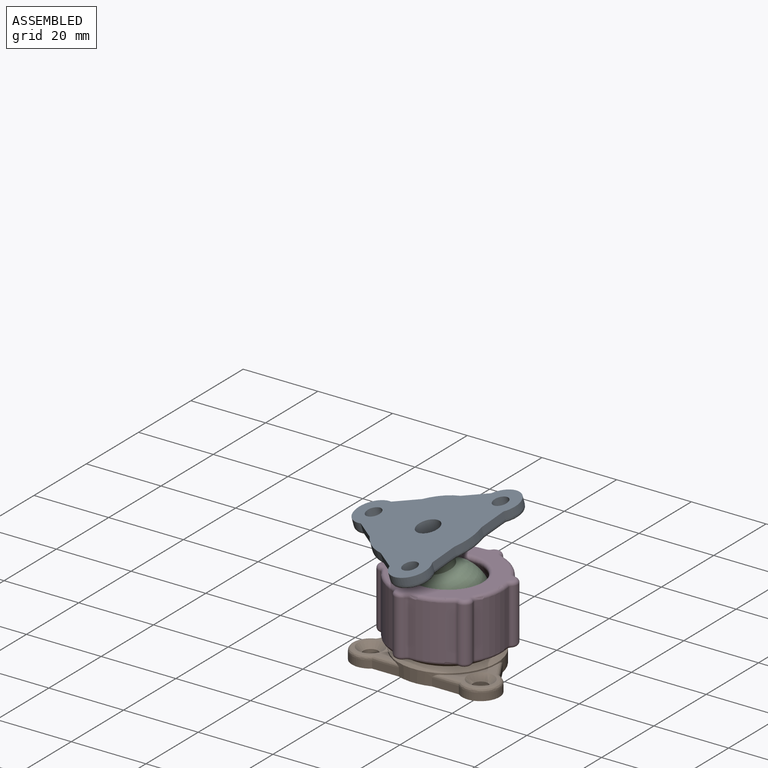
[diagram: assembled view]
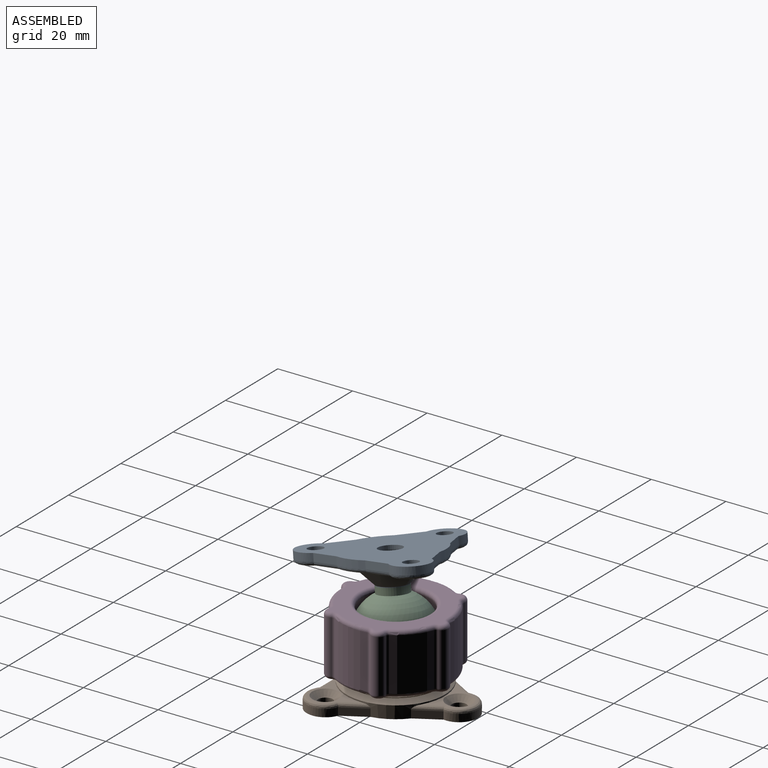
[diagram: assembled view, second angle]
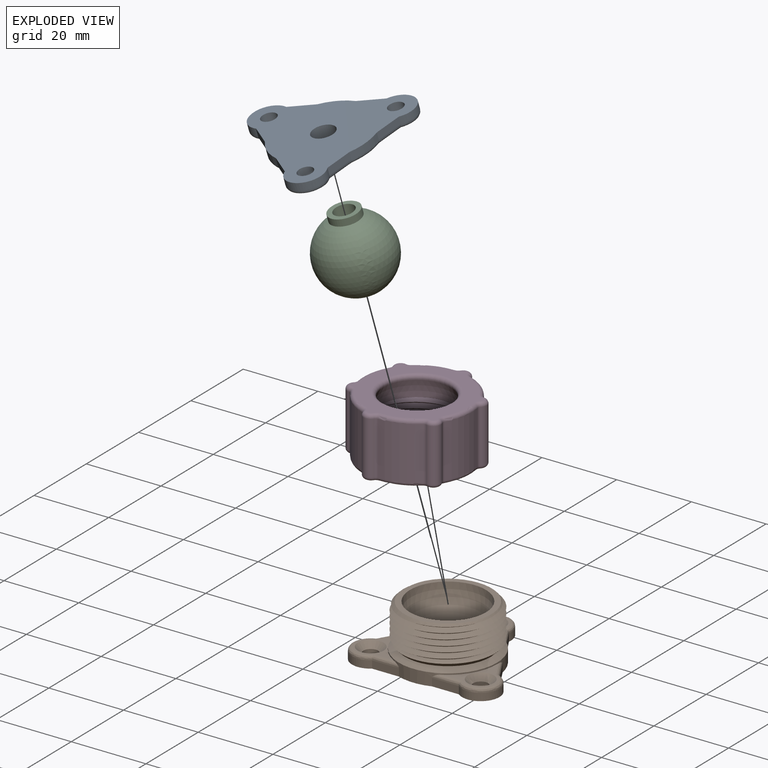
[diagram: exploded view]
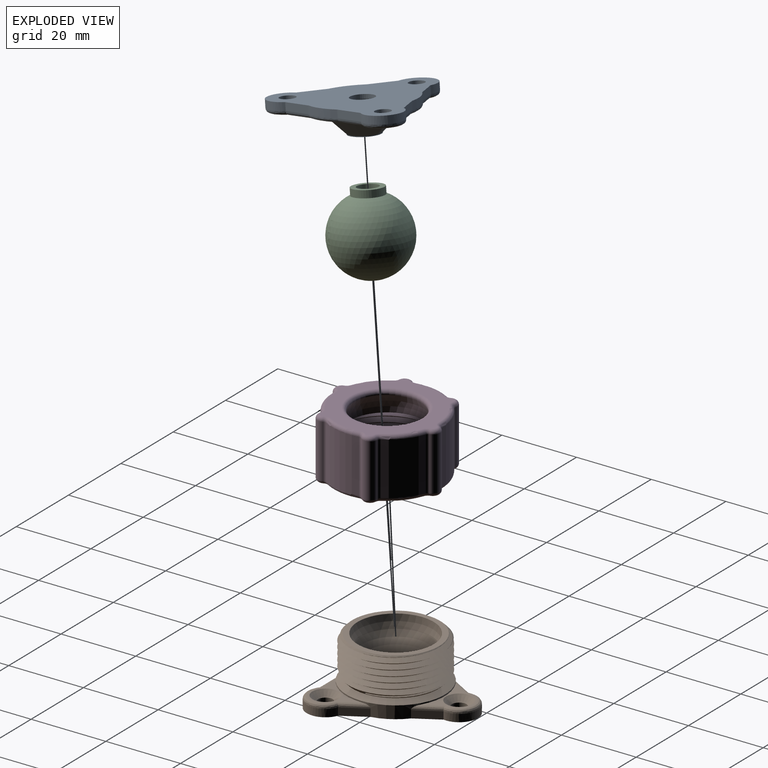
[diagram: exploded view, second angle]
ASSEMBLY  parts=4 mates=3
PART A: 38 faces, bbox 39.9x35.9x8.2 mm
  f0: plane 39.45x35.5mm, normal (0,0,1), area 761.5mm2, adj f4,f5,f6,f7,f8,f9,f10,f11
  f1: plane 37.53x33.55mm, normal (0,0,-1), area 395.3mm2, adj f3,f19,f20,f21,f22,f23,f24,f25
  f2: cylinder r=4mm len=8mm, axis (0,0,1), area 4.2mm2, adj f3,f31
  f3: cone r=9mm half-angle=45deg, axis (0,0,1), area 288.8mm2, adj f1,f2
  f4: cylinder r=2mm len=4mm, axis (0,0,-1), area 31.4mm2, adj f0,f35
  f5: cylinder r=2mm len=4mm, axis (0,0,-1), area 31.4mm2, adj f0,f37
  f6: cylinder r=2mm len=4mm, axis (0,0,-1), area 31.4mm2, adj f0,f36
  f7: plane 6.21x3.58mm, normal (0.87,0.5,0), area 14.3mm2, adj f0,f8,f11,f24
  f8: cylinder r=13.19mm len=7.7mm, axis (0,0,-1), area 18.1mm2, adj f0,f7,f9,f22
  f9: plane 6.21x3.58mm, normal (0.87,0.5,0), area 14.3mm2, adj f0,f8,f10,f20
  f10: cylinder r=5mm len=9.65mm, axis (0,0,-1), area 34.4mm2, adj f0,f9,f18,f19
  f11: cylinder r=5mm len=10mm, axis (0,0,-1), area 34.4mm2, adj f0,f7,f13,f26
  f12: cylinder r=13.19mm len=7.7mm, axis (0,0,-1), area 18.1mm2, adj f0,f13,f15,f30
  f13: plane 6.21x3.58mm, normal (-0.87,0.5,0), area 14.3mm2, adj f0,f11,f12,f28
  f14: cylinder r=5mm len=9.65mm, axis (0,0,-1), area 34.4mm2, adj f0,f15,f17,f27
  f15: plane 6.21x3.58mm, normal (-0.87,0.5,0), area 14.3mm2, adj f0,f12,f14,f29
  f16: cylinder r=13.19mm len=8.89mm, axis (0,0,-1), area 18.1mm2, adj f0,f17,f18,f23
  f17: plane 7.17x2mm, normal (0,-1,0), area 14.3mm2, adj f0,f14,f16,f25
  f18: plane 7.17x2mm, normal (0,-1,0), area 14.3mm2, adj f0,f10,f16,f21
  f19: bspline ~10.18x9.14mm, area 26.6mm2, adj f1,f10,f20,f21
  f20: bspline ~7.7x5.02mm, area 12.1mm2, adj f1,f9,f19,f22
  f21: bspline ~8.31x1mm, area 12.1mm2, adj f1,f18,f19,f23
  f22: bspline ~8.73x5.58mm, area 14.7mm2, adj f1,f8,f20,f24
  f23: bspline ~9.92x1.93mm, area 14.7mm2, adj f1,f16,f21,f25
  f24: bspline ~7.7x5.02mm, area 12.1mm2, adj f1,f7,f22,f26
  f25: bspline ~8.31x1mm, area 12.1mm2, adj f1,f17,f23,f27
  f26: bspline ~10.23x6.98mm, area 26.6mm2, adj f1,f11,f24,f28
  f27: bspline ~10.18x9.14mm, area 26.6mm2, adj f1,f14,f25,f29
  f28: bspline ~7.7x5.02mm, area 12.1mm2, adj f1,f13,f26,f30
  f29: bspline ~7.7x5.02mm, area 12.1mm2, adj f1,f15,f27,f30
  f30: bspline ~8.73x5.58mm, area 14.7mm2, adj f1,f12,f28,f29
  f31: plane 8x8mm, normal (0,0,-1), area 43.2mm2, adj f2,f34
  f32: cylinder r=3mm len=6mm, axis (0,0,1), area 84.8mm2, adj f0,f33
  f33: plane 6x6mm, normal (0,0,1), area 21.2mm2, adj f32,f34
  f34: cylinder r=1.5mm len=3.67mm, axis (0,0,1), area 34.5mm2, adj f31,f33
  f35: cone r=2.5mm half-angle=45deg, axis (0,0,-1), area 10mm2, adj f1,f4
  f36: cone r=2.5mm half-angle=45deg, axis (0,0,-1), area 10mm2, adj f1,f6
  f37: cone r=2.5mm half-angle=45deg, axis (0,0,-1), area 10mm2, adj f1,f5
PART B: 41 faces, bbox 40x37.1x15.6 mm
  f0: plane 12.54x12.16mm, normal (0,0,1), area 27mm2, adj f12,f29,f32,f33,f34
  f1: plane 39.45x35.5mm, normal (0,0,-1), area 635.8mm2, adj f12,f15,f16,f17,f18,f19,f20,f21
  f2: plane 12.54x12.16mm, normal (0,0,1), area 27.1mm2, adj f12,f30,f35,f36,f37
  f3: plane 13.18x9.58mm, normal (0,0,1), area 27mm2, adj f12,f31,f38,f39,f40
  f4: sphere r=10.2mm, area 478.3mm2, adj f5,f14
  f5: plane 23.51x23.35mm, normal (0,0,1), area 102mm2, adj f4,f6,f8,f9
  f6: cone r=11.69mm half-angle=45deg, axis (0,0,-1), area 52.1mm2, adj f5,f8,f9
  f7: plane 0.8x0.59mm, normal (0,1,0), area 0.1mm2, adj f8,f9,f10
  f8: bspline ~29.63x25.66mm, area 706.5mm2, adj f5,f6,f7,f9,f10,f11
  f9: bspline ~29.63x25.66mm, area 696.6mm2, adj f5,f6,f7,f8,f11
  f10: cone r=13.19mm half-angle=45deg, axis (0,0,1), area 73mm2, adj f7,f8,f11,f28
  f11: cone r=13.19mm half-angle=45deg, axis (0,0,1), area 3.3mm2, adj f8,f9,f10
  f12: cylinder r=13.19mm len=26.38mm, axis (0,0,1), area 112.9mm2, adj f0,f1,f2,f3,f17,f18,f21,f23
  f13: cylinder r=6mm len=12mm, axis (0,0,1), area 205.7mm2, adj f14,f15
  f14: torus R=7mm, axis (0,0,1), area 34.5mm2, adj f4,f13
  f15: torus R=7mm, axis (0,0,-1), area 62.8mm2, adj f1,f13
  f16: cylinder r=2mm len=4mm, axis (0,0,1), area 18.8mm2, adj f1,f31
  f17: plane 6.21x3.58mm, normal (0.87,0.5,0), area 14.3mm2, adj f1,f12,f20,f38
  f18: plane 6.21x3.58mm, normal (0.87,0.5,0), area 14.3mm2, adj f1,f12,f19,f34
  f19: cylinder r=5mm len=9.65mm, axis (0,0,1), area 34.4mm2, adj f1,f18,f25,f33
  f20: cylinder r=5mm len=10mm, axis (0,0,1), area 34.4mm2, adj f1,f17,f21,f39
  f21: plane 6.21x3.58mm, normal (-0.87,0.5,0), area 14.3mm2, adj f1,f12,f20,f40
  f22: cylinder r=5mm len=9.65mm, axis (0,0,1), area 34.4mm2, adj f1,f23,f24,f36
  f23: plane 6.21x3.58mm, normal (-0.87,0.5,0), area 14.3mm2, adj f1,f12,f22,f35
  f24: plane 7.17x2mm, normal (0,-1,0), area 14.3mm2, adj f1,f12,f22,f37
  f25: plane 7.17x2mm, normal (0,-1,0), area 14.3mm2, adj f1,f12,f19,f32
  f26: cylinder r=2mm len=4mm, axis (0,0,1), area 18.8mm2, adj f1,f30
  f27: cylinder r=2mm len=4mm, axis (0,0,1), area 18.8mm2, adj f1,f29
  f28: cone r=11.19mm half-angle=60deg, axis (0,0,-1), area 150.8mm2, adj f10,f12
  f29: cone r=2mm half-angle=45deg, axis (0,0,1), area 36.7mm2, adj f0,f27
  f30: cone r=2mm half-angle=45deg, axis (0,0,1), area 36.7mm2, adj f2,f26
  f31: cone r=2mm half-angle=45deg, axis (0,0,1), area 36.7mm2, adj f3,f16
  f32: bspline ~8.21x1mm, area 10.2mm2, adj f0,f12,f25,f33
  f33: bspline ~10.18x9.14mm, area 26.6mm2, adj f0,f19,f32,f34
  f34: bspline ~7.61x4.97mm, area 10.6mm2, adj f0,f12,f18,f33
  f35: bspline ~7.61x4.97mm, area 10.2mm2, adj f2,f12,f23,f36
  f36: bspline ~10.18x9.14mm, area 26.6mm2, adj f2,f22,f35,f37
  f37: bspline ~8.21x1mm, area 10.2mm2, adj f2,f12,f24,f36
  f38: bspline ~7.61x4.97mm, area 10.2mm2, adj f3,f12,f17,f39
  f39: bspline ~10.23x6.98mm, area 26.6mm2, adj f3,f20,f38,f40
  f40: bspline ~7.61x4.97mm, area 10.2mm2, adj f3,f12,f21,f39
PART C: 5 faces, bbox 20x20x21 mm
  f0: plane 8x8mm, normal (0,0,1), area 28.2mm2, adj f2,f3
  f1: sphere r=10mm, area 1204.2mm2, adj f2
  f2: cylinder r=4mm len=8mm, axis (0,0,1), area 46.1mm2, adj f0,f1
  f3: cylinder r=2.65mm len=6mm, axis (0,0,1), area 99.9mm2, adj f0,f4
  f4: plane 5.3x5.3mm, normal (0,0,1), area 22.1mm2, adj f3
PART D: 82 faces, bbox 32.8x33.7x18 mm
  f0: plane 31.35x28.35mm, normal (0,0,-1), area 105.1mm2, adj f9,f12,f13,f14,f22,f23,f24,f25
  f1: plane 30.38x27.38mm, normal (0,0,1), area 292.4mm2, adj f15,f27,f31,f32,f36,f37,f41,f42
  f2: cylinder r=14.69mm len=14.2mm, axis (0,0,1), area 145.7mm2, adj f70,f75,f78,f81
  f3: cylinder r=14.69mm len=14.2mm, axis (0,0,1), area 145.7mm2, adj f58,f59,f67,f68
  f4: cylinder r=14.69mm len=14.2mm, axis (0,0,1), area 145.7mm2, adj f38,f39,f47,f48
  f5: cylinder r=14.69mm len=14.2mm, axis (0,0,1), area 145.7mm2, adj f22,f26,f27,f28
  f6: cylinder r=14.69mm len=14.2mm, axis (0,0,1), area 145.7mm2, adj f34,f35,f45,f46
  f7: cylinder r=14.69mm len=14.2mm, axis (0,0,1), area 145.7mm2, adj f54,f55,f65,f66
  f8: plane 26.77x26.32mm, normal (0,0,-1), area 212.7mm2, adj f9,f10,f11,f12
  f9: cylinder r=13.19mm len=26.38mm, axis (0,0,1), area 31.7mm2, adj f0,f8,f11,f12,f13,f14
  f10: sphere r=10.2mm, area 291.8mm2, adj f8,f15
  f11: plane 1.14x1.11mm, normal (0.49,-0.87,0), area 0.8mm2, adj f8,f9,f12,f14
  f12: bspline ~30.46x26.38mm, area 761.1mm2, adj f0,f8,f9,f11,f13,f14
  f13: plane 0.67x0.39mm, normal (0,-1,0), area 0.1mm2, adj f0,f9,f12
  f14: bspline ~30.46x26.38mm, area 723.3mm2, adj f0,f9,f11,f12
  f15: torus R=10.02mm, axis (0,0,-1), area 119mm2, adj f1,f10
  f16: cylinder r=2mm len=14.2mm, axis (0,0,1), area 64.6mm2, adj f44,f45,f55,f56
  f17: cylinder r=2mm len=14.2mm, axis (0,0,1), area 64.6mm2, adj f25,f26,f35,f36
  f18: cylinder r=2mm len=14.2mm, axis (0,0,1), area 64.6mm2, adj f28,f29,f37,f38
  f19: cylinder r=2mm len=14.2mm, axis (0,0,1), area 64.6mm2, adj f48,f49,f57,f58
  f20: cylinder r=2mm len=14.2mm, axis (0,0,1), area 64.6mm2, adj f68,f69,f77,f78
  f21: cylinder r=2mm len=14.2mm, axis (0,0,1), area 64.6mm2, adj f64,f65,f75,f76
  f22: torus R=13.69mm, axis (0,0,1), area 15.7mm2, adj f0,f5,f23,f24
  f23: torus R=2mm, axis (0,0,1), area 2.1mm2, adj f0,f22,f25,f26
  f24: torus R=2mm, axis (0,0,1), area 2.1mm2, adj f0,f22,f28,f29
  f25: torus R=1mm, axis (0,0,1), area 5.8mm2, adj f0,f17,f23,f30
  f26: cylinder r=1mm len=14.2mm, axis (0,0,-1), area 13.7mm2, adj f5,f17,f23,f31
  f27: torus R=13.69mm, axis (0,0,-1), area 15.7mm2, adj f1,f5,f31,f32
  f28: cylinder r=1mm len=14.2mm, axis (0,0,-1), area 13.7mm2, adj f5,f18,f24,f32
  f29: torus R=1mm, axis (0,0,1), area 5.8mm2, adj f0,f18,f24,f33
  f30: torus R=2mm, axis (0,0,1), area 2.1mm2, adj f0,f25,f34,f35
  f31: torus R=2mm, axis (0,0,-1), area 2.1mm2, adj f1,f26,f27,f36
  f32: torus R=2mm, axis (0,0,-1), area 2.1mm2, adj f1,f27,f28,f37
  f33: torus R=2mm, axis (0,0,1), area 2.1mm2, adj f0,f29,f38,f39
  f34: torus R=13.69mm, axis (0,0,1), area 15.7mm2, adj f0,f6,f30,f40
  f35: cylinder r=1mm len=14.2mm, axis (0,0,-1), area 13.7mm2, adj f6,f17,f30,f41
  f36: torus R=1mm, axis (0,0,-1), area 5.8mm2, adj f1,f17,f31,f41
  f37: torus R=1mm, axis (0,0,-1), area 5.8mm2, adj f1,f18,f32,f42
  f38: cylinder r=1mm len=14.2mm, axis (0,0,-1), area 13.7mm2, adj f4,f18,f33,f42
  f39: torus R=13.69mm, axis (0,0,1), area 15.7mm2, adj f0,f4,f33,f43
  f40: torus R=2mm, axis (0,0,1), area 2.1mm2, adj f0,f34,f44,f45
  f41: torus R=2mm, axis (0,0,-1), area 2.1mm2, adj f1,f35,f36,f46
  f42: torus R=2mm, axis (0,0,-1), area 2.1mm2, adj f1,f37,f38,f47
  f43: torus R=2mm, axis (0,0,1), area 2.1mm2, adj f0,f39,f48,f49
  f44: torus R=1mm, axis (0,0,1), area 5.8mm2, adj f0,f16,f40,f50
  f45: cylinder r=1mm len=14.2mm, axis (0,0,-1), area 13.7mm2, adj f6,f16,f40,f51
  f46: torus R=13.69mm, axis (0,0,-1), area 15.7mm2, adj f1,f6,f41,f51
  f47: torus R=13.69mm, axis (0,0,-1), area 15.7mm2, adj f1,f4,f42,f52
  f48: cylinder r=1mm len=14.2mm, axis (0,0,-1), area 13.7mm2, adj f4,f19,f43,f52
  f49: torus R=1mm, axis (0,0,1), area 5.8mm2, adj f0,f19,f43,f53
  f50: torus R=2mm, axis (0,0,1), area 2.1mm2, adj f0,f44,f54,f55
  f51: torus R=2mm, axis (0,0,-1), area 2.1mm2, adj f1,f45,f46,f56
  f52: torus R=2mm, axis (0,0,-1), area 2.1mm2, adj f1,f47,f48,f57
  f53: torus R=2mm, axis (0,0,1), area 2.1mm2, adj f0,f49,f58,f59
  f54: torus R=13.69mm, axis (0,0,1), area 15.7mm2, adj f0,f7,f50,f60
  f55: cylinder r=1mm len=14.2mm, axis (0,0,-1), area 13.7mm2, adj f7,f16,f50,f61
  f56: torus R=1mm, axis (0,0,-1), area 5.8mm2, adj f1,f16,f51,f61
  f57: torus R=1mm, axis (0,0,-1), area 5.8mm2, adj f1,f19,f52,f62
  f58: cylinder r=1mm len=14.2mm, axis (0,0,-1), area 13.7mm2, adj f3,f19,f53,f62
  f59: torus R=13.69mm, axis (0,0,1), area 15.7mm2, adj f0,f3,f53,f63
  f60: torus R=2mm, axis (0,0,1), area 2.1mm2, adj f0,f54,f64,f65
  f61: torus R=2mm, axis (0,0,-1), area 2.1mm2, adj f1,f55,f56,f66
  f62: torus R=2mm, axis (0,0,-1), area 2.1mm2, adj f1,f57,f58,f67
  f63: torus R=2mm, axis (0,0,1), area 2.1mm2, adj f0,f59,f68,f69
  f64: torus R=1mm, axis (0,0,1), area 5.8mm2, adj f0,f21,f60,f71
  f65: cylinder r=1mm len=14.2mm, axis (0,0,-1), area 13.7mm2, adj f7,f21,f60,f72
  f66: torus R=13.69mm, axis (0,0,-1), area 15.7mm2, adj f1,f7,f61,f72
  f67: torus R=13.69mm, axis (0,0,-1), area 15.7mm2, adj f1,f3,f62,f73
  f68: cylinder r=1mm len=14.2mm, axis (0,0,-1), area 13.7mm2, adj f3,f20,f63,f73
  f69: torus R=1mm, axis (0,0,1), area 5.8mm2, adj f0,f20,f63,f74
  f70: torus R=13.69mm, axis (0,0,1), area 15.7mm2, adj f0,f2,f71,f74
  f71: torus R=2mm, axis (0,0,1), area 2.1mm2, adj f0,f64,f70,f75
  f72: torus R=2mm, axis (0,0,-1), area 2.1mm2, adj f1,f65,f66,f76
  f73: torus R=2mm, axis (0,0,-1), area 2.1mm2, adj f1,f67,f68,f77
  f74: torus R=2mm, axis (0,0,1), area 2.1mm2, adj f0,f69,f70,f78
  f75: cylinder r=1mm len=14.2mm, axis (0,0,-1), area 13.7mm2, adj f2,f21,f71,f79
  f76: torus R=1mm, axis (0,0,-1), area 5.8mm2, adj f1,f21,f72,f79
  f77: torus R=1mm, axis (0,0,-1), area 5.8mm2, adj f1,f20,f73,f80
  f78: cylinder r=1mm len=14.2mm, axis (0,0,-1), area 13.7mm2, adj f2,f20,f74,f80
  f79: torus R=2mm, axis (0,0,-1), area 2.1mm2, adj f1,f75,f76,f81
  f80: torus R=2mm, axis (0,0,-1), area 2.1mm2, adj f1,f77,f78,f81
  f81: torus R=13.69mm, axis (0,0,-1), area 15.7mm2, adj f1,f2,f79,f80
PLACE A rot(axis=(0.31,-0.12,-0.94),41.4deg) t=(5.31,-0.66,-0.5)mm
PLACE B t=(5.31,-0.66,0)mm fixed
PLACE C rot(axis=(0.31,-0.12,-0.94),41.4deg) t=(5.31,-0.66,-0.5)mm
PLACE D rot(axis=(0,0,-1),70.4deg) t=(5.31,-0.66,0.8)mm
MATE cylindrical D.f2 <-> B.f6  axis (0,0,-1) through (5.31,-0.66,0.8)mm
MATE fastened C.f3 <-> A.f34  axis (-0.15,-0.18,0.97) through (3.65,-2.64,10.19)mm
MATE ball C.f2 <-> B.f6  axis (-0.15,-0.18,0.97) through (5.31,-0.66,-0.5)mm
